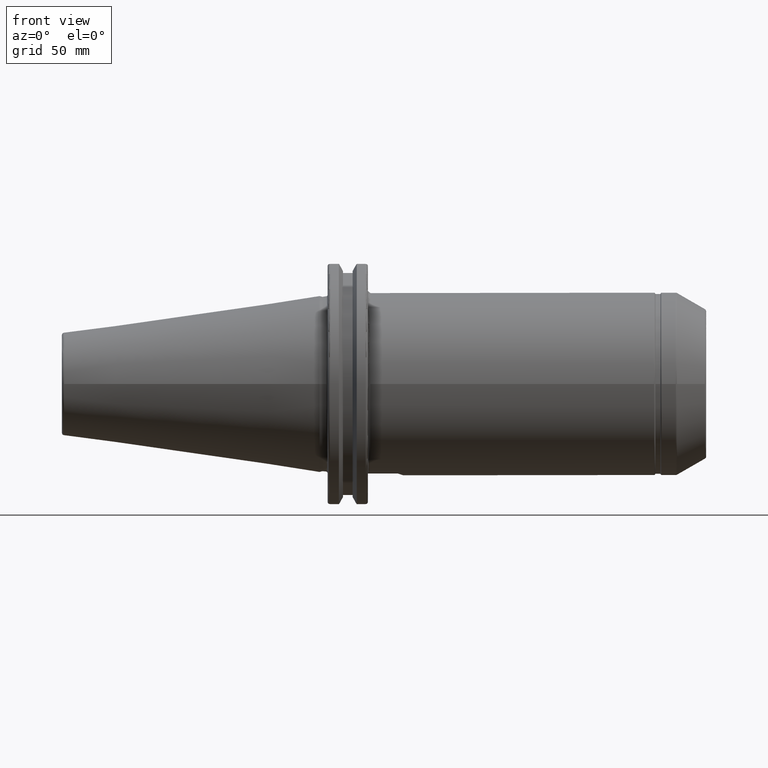
[diagram: clean part render]
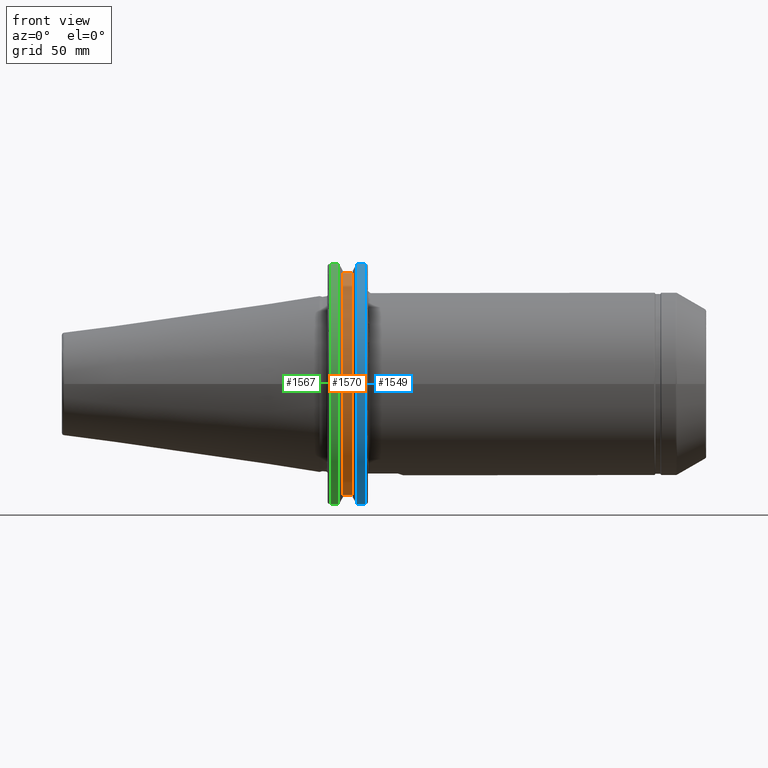
[diagram: same view with three faces highlighted in distinct colors, each labeled with its STEP entity id]
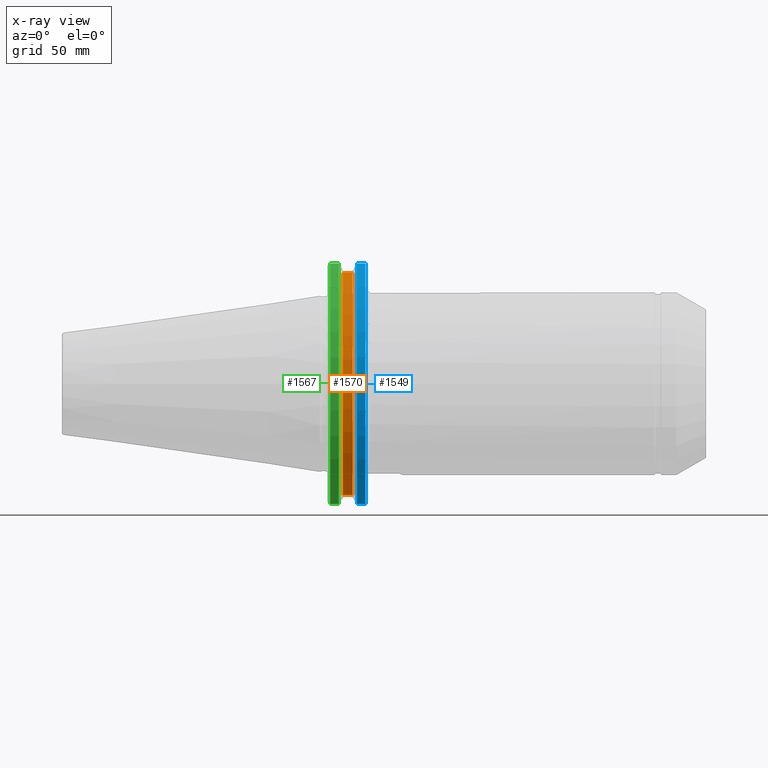
[diagram: x-ray of the same camera — body ghosted, the three highlighted faces saturated]
A machine part, front view with three faces highlighted in distinct colors.
The next image is the same camera in x-ray (body ghosted, the three faces saturated) — at least one of them is partly hidden behind the body in this view.
Their STEP definitions:

[orange] entity #1570 — the highlighted cylindrical surface (partial cylindrical patch) has radius 45.6435 mm, axis along (1, 0, 0).
#235=FACE_OUTER_BOUND('',#341,.T.);
#341=EDGE_LOOP('',(#1439,#1440,#1441,#1442));
#399=LINE('',#2793,#482);
#404=LINE('',#2811,#487);
#482=VECTOR('',#2133,10.);
#487=VECTOR('',#2140,10.);
#598=CIRCLE('',#1790,45.6435);
#599=CIRCLE('',#1792,45.6435);
#715=VERTEX_POINT('',#2790);
#716=VERTEX_POINT('',#2792);
#721=VERTEX_POINT('',#2808);
#722=VERTEX_POINT('',#2810);
#917=EDGE_CURVE('',#716,#715,#399,.T.);
#924=EDGE_CURVE('',#722,#721,#404,.T.);
#984=EDGE_CURVE('',#715,#722,#598,.T.);
#985=EDGE_CURVE('',#716,#721,#599,.T.);
#1439=ORIENTED_EDGE('',*,*,#924,.T.);
#1440=ORIENTED_EDGE('',*,*,#985,.F.);
#1441=ORIENTED_EDGE('',*,*,#917,.T.);
#1442=ORIENTED_EDGE('',*,*,#984,.T.);
#1483=CYLINDRICAL_SURFACE('',#1791,45.6435);
#1570=ADVANCED_FACE('',(#235),#1483,.T.);
#1790=AXIS2_PLACEMENT_3D('',#2992,#2269,#2270);
#1791=AXIS2_PLACEMENT_3D('',#2993,#2271,#2272);
#1792=AXIS2_PLACEMENT_3D('',#2994,#2273,#2274);
#2133=DIRECTION('',(-1.,0.,0.));
#2140=DIRECTION('',(1.,0.,0.));
#2269=DIRECTION('center_axis',(1.,0.,0.));
#2270=DIRECTION('ref_axis',(0.,0.,-1.));
#2271=DIRECTION('center_axis',(1.,0.,0.));
#2272=DIRECTION('ref_axis',(0.,-1.,-1.22464679914735E-16));
#2273=DIRECTION('center_axis',(1.,0.,0.));
#2274=DIRECTION('ref_axis',(0.,0.,-1.));
#2790=CARTESIAN_POINT('',(9.2191,-12.95,43.7678716897452));
#2792=CARTESIAN_POINT('',(13.0491,-12.95,43.7678716897452));
#2793=CARTESIAN_POINT('',(11.1341,-12.95,43.7678716897452));
#2808=CARTESIAN_POINT('',(13.0491,-12.95,-43.7678716897452));
#2810=CARTESIAN_POINT('',(9.2191,-12.95,-43.7678716897452));
#2811=CARTESIAN_POINT('',(11.1341,-12.95,-43.7678716897452));
#2992=CARTESIAN_POINT('Origin',(9.2191,0.,0.));
#2993=CARTESIAN_POINT('Origin',(11.1341,0.,0.));
#2994=CARTESIAN_POINT('Origin',(13.0491,0.,0.));

[blue] entity #1549 — the highlighted cylindrical surface (partial cylindrical patch) has radius 49.2125 mm, axis along (1, 0, 0).
#214=FACE_OUTER_BOUND('',#318,.T.);
#318=EDGE_LOOP('',(#1337,#1338,#1339,#1340));
#414=LINE('',#2919,#497);
#415=LINE('',#2925,#498);
#497=VECTOR('',#2190,10.);
#498=VECTOR('',#2193,10.);
#576=CIRCLE('',#1734,49.2125);
#586=CIRCLE('',#1758,49.2125);
#710=VERTEX_POINT('',#2756);
#711=VERTEX_POINT('',#2765);
#741=VERTEX_POINT('',#2918);
#742=VERTEX_POINT('',#2924);
#910=EDGE_CURVE('',#710,#711,#576,.T.);
#954=EDGE_CURVE('',#711,#741,#414,.T.);
#956=EDGE_CURVE('',#742,#710,#415,.T.);
#957=EDGE_CURVE('',#742,#741,#586,.T.);
#1337=ORIENTED_EDGE('',*,*,#910,.F.);
#1338=ORIENTED_EDGE('',*,*,#956,.F.);
#1339=ORIENTED_EDGE('',*,*,#957,.T.);
#1340=ORIENTED_EDGE('',*,*,#954,.F.);
#1477=CYLINDRICAL_SURFACE('',#1757,49.2125);
#1549=ADVANCED_FACE('',(#214),#1477,.T.);
#1734=AXIS2_PLACEMENT_3D('',#2766,#2126,#2127);
#1757=AXIS2_PLACEMENT_3D('',#2923,#2191,#2192);
#1758=AXIS2_PLACEMENT_3D('',#2926,#2194,#2195);
#2126=DIRECTION('center_axis',(1.,0.,0.));
#2127=DIRECTION('ref_axis',(0.,-1.,1.60812264967664E-16));
#2190=DIRECTION('',(-1.,0.,0.));
#2191=DIRECTION('center_axis',(1.,0.,0.));
#2192=DIRECTION('ref_axis',(0.,-1.,1.22464679914735E-16));
#2193=DIRECTION('',(1.,0.,0.));
#2194=DIRECTION('center_axis',(1.,0.,0.));
#2195=DIRECTION('ref_axis',(0.,0.,-1.));
#2756=CARTESIAN_POINT('',(18.05,-13.4317035994433,47.3440544806494));
#2765=CARTESIAN_POINT('',(18.05,-13.4317035994433,-47.3440544806494));
#2766=CARTESIAN_POINT('Origin',(18.05,0.,0.));
#2918=CARTESIAN_POINT('',(14.6602090340487,-13.4317035994433,-47.3440544806494));
#2919=CARTESIAN_POINT('',(16.8551045170244,-13.4317035994433,-47.3440544806494));
#2923=CARTESIAN_POINT('Origin',(16.8551045170244,0.,0.));
#2924=CARTESIAN_POINT('',(14.6602090340487,-13.4317035994433,47.3440544806494));
#2925=CARTESIAN_POINT('',(16.8551045170244,-13.4317035994433,47.3440544806494));
#2926=CARTESIAN_POINT('Origin',(14.6602090340487,0.,0.));

[green] entity #1567 — the highlighted cylindrical surface (partial cylindrical patch) has radius 49.2125 mm, axis along (1, 0, 0).
#232=FACE_OUTER_BOUND('',#338,.T.);
#338=EDGE_LOOP('',(#1425,#1426,#1427,#1428));
#408=LINE('',#2849,#491);
#413=LINE('',#2916,#496);
#491=VECTOR('',#2150,10.);
#496=VECTOR('',#2187,10.);
#577=CIRCLE('',#1738,49.2125);
#596=CIRCLE('',#1786,49.2125);
#726=VERTEX_POINT('',#2828);
#727=VERTEX_POINT('',#2837);
#728=VERTEX_POINT('',#2848);
#740=VERTEX_POINT('',#2912);
#931=EDGE_CURVE('',#726,#727,#577,.T.);
#933=EDGE_CURVE('',#727,#728,#408,.T.);
#953=EDGE_CURVE('',#740,#726,#413,.T.);
#982=EDGE_CURVE('',#728,#740,#596,.T.);
#1425=ORIENTED_EDGE('',*,*,#931,.F.);
#1426=ORIENTED_EDGE('',*,*,#953,.F.);
#1427=ORIENTED_EDGE('',*,*,#982,.F.);
#1428=ORIENTED_EDGE('',*,*,#933,.F.);
#1482=CYLINDRICAL_SURFACE('',#1785,49.2125);
#1567=ADVANCED_FACE('',(#232),#1482,.T.);
#1738=AXIS2_PLACEMENT_3D('',#2838,#2146,#2147);
#1785=AXIS2_PLACEMENT_3D('',#2987,#2259,#2260);
#1786=AXIS2_PLACEMENT_3D('',#2988,#2261,#2262);
#2146=DIRECTION('center_axis',(-1.,0.,0.));
#2147=DIRECTION('ref_axis',(0.,-1.,1.60812264967664E-16));
#2150=DIRECTION('',(1.,0.,0.));
#2187=DIRECTION('',(-1.,0.,0.));
#2259=DIRECTION('center_axis',(1.,0.,0.));
#2260=DIRECTION('ref_axis',(0.,-1.,1.22464679914735E-16));
#2261=DIRECTION('center_axis',(1.,0.,0.));
#2262=DIRECTION('ref_axis',(0.,0.,-1.));
#2828=CARTESIAN_POINT('',(4.175,-13.4317035994433,-47.3440544806494));
#2837=CARTESIAN_POINT('',(4.175,-13.4317035994433,47.3440544806494));
#2838=CARTESIAN_POINT('Origin',(4.175,0.,0.));
#2848=CARTESIAN_POINT('',(7.60799096595127,-13.4317035994433,47.3440544806494));
#2849=CARTESIAN_POINT('',(5.39149548297563,-13.4317035994433,47.3440544806494));
#2912=CARTESIAN_POINT('',(7.60799096595127,-13.4317035994433,-47.3440544806494));
#2916=CARTESIAN_POINT('',(5.39149548297563,-13.4317035994433,-47.3440544806494));
#2987=CARTESIAN_POINT('Origin',(5.39149548297563,0.,0.));
#2988=CARTESIAN_POINT('Origin',(7.60799096595127,0.,0.));